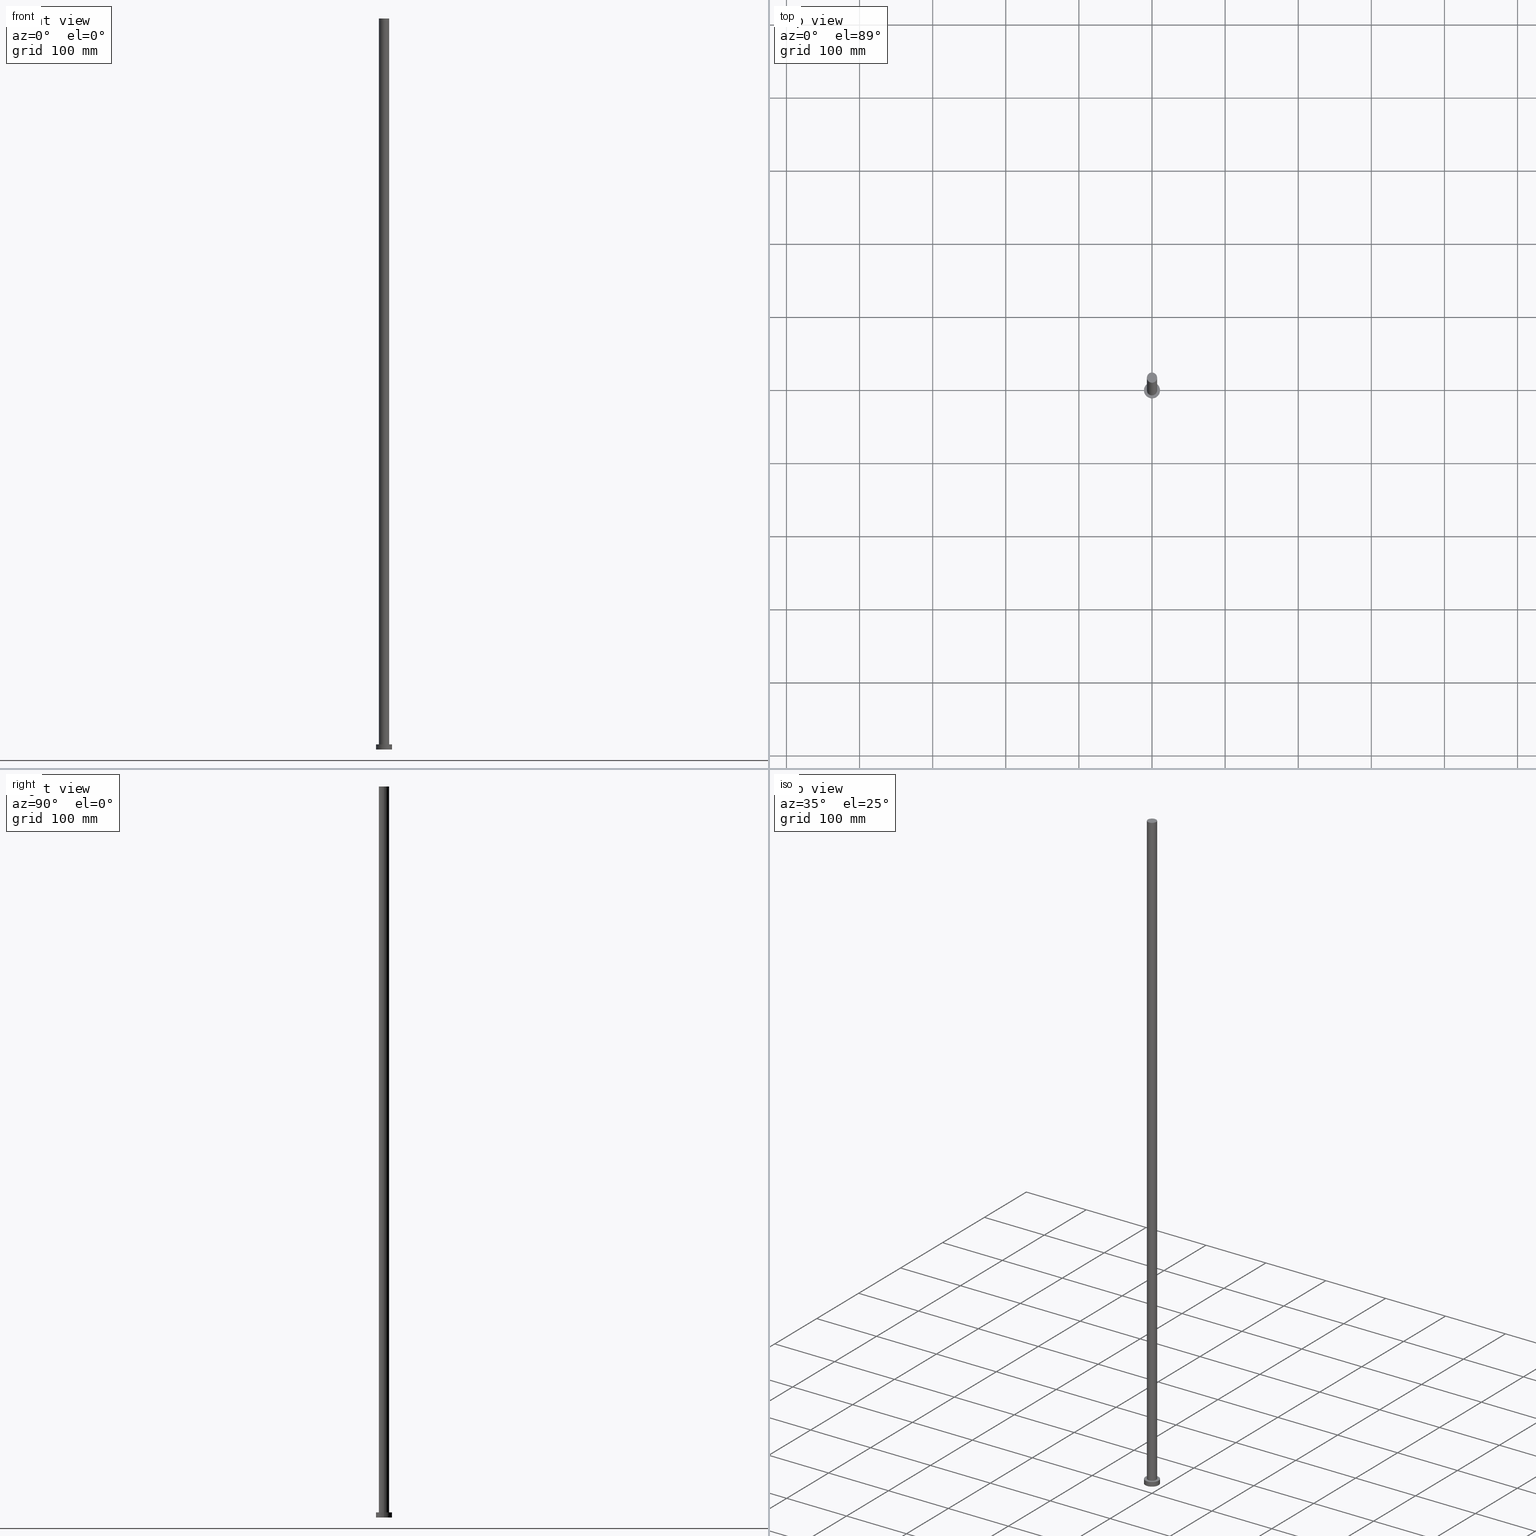
[diagram: canonical four-view strip — front | top / right | iso, engineering-drawing reading convention]
A machine part, canonical four-view strip (front | top / right | iso — engineering-drawing reading convention). The complete STEP part file that produces these views, byte-faithful:
ISO-10303-21;
HEADER;
FILE_DESCRIPTION (( 'STEP AP203' ),
    '1' );
FILE_NAME ('3a1b.STEP',
    '2023-02-13T09:45:21',
    ( '' ),
    ( '' ),
    'SwSTEP 2.0',
    'SolidWorks 2019',
    '' );
FILE_SCHEMA (( 'CONFIG_CONTROL_DESIGN' ));
ENDSEC;

DATA;
#1 = PERSON_AND_ORGANIZATION_ROLE ( 'creator' ) ;
#2 = APPROVAL_PERSON_ORGANIZATION ( #49, #228, #143 ) ;
#3 = ORGANIZATION ( 'NEUR�EN�', 'NEUR�EN�', '' ) ;
#4 = ORIENTED_EDGE ( 'NONE', *, *, #241, .F. ) ;
#5 = APPLICATION_CONTEXT ( 'configuration controlled 3d designs of mechanical parts and assemblies' ) ;
#6 = AXIS2_PLACEMENT_3D ( 'NONE', #63, #104, #48 ) ;
#7 = CIRCLE ( 'NONE', #236, 7.000000000000000888 ) ;
#8 = ORIENTED_EDGE ( 'NONE', *, *, #152, .F. ) ;
#9 = DIRECTION ( 'NONE',  ( -0.000000000000000000, -0.000000000000000000, -1.000000000000000000 ) ) ;
#10 = CC_DESIGN_PERSON_AND_ORGANIZATION_ASSIGNMENT ( #92, #249, ( #41 ) ) ;
#11 = DIRECTION ( 'NONE',  ( 1.000000000000000000, 0.000000000000000000, 0.000000000000000000 ) ) ;
#12 = CARTESIAN_POINT ( 'NONE',  ( -7.000000000000000888, 0.000000000000000000, 1000.000000000000000 ) ) ;
#13 = FACE_OUTER_BOUND ( 'NONE', #22, .T. ) ;
#14 = CARTESIAN_POINT ( 'NONE',  ( 0.000000000000000000, 0.000000000000000000, 0.000000000000000000 ) ) ;
#15 = DIRECTION ( 'NONE',  ( 1.000000000000000000, 0.000000000000000000, 0.000000000000000000 ) ) ;
#16 = APPLICATION_CONTEXT ( 'configuration controlled 3d designs of mechanical parts and assemblies' ) ;
#17 = DIRECTION ( 'NONE',  ( -0.000000000000000000, -0.000000000000000000, -1.000000000000000000 ) ) ;
#18 = CIRCLE ( 'NONE', #140, 7.000000000000000888 ) ;
#19 = DIRECTION ( 'NONE',  ( -0.000000000000000000, -0.000000000000000000, -1.000000000000000000 ) ) ;
#20 = EDGE_CURVE ( 'NONE', #174, #78, #60, .T. ) ;
#21 = ORIENTED_EDGE ( 'NONE', *, *, #55, .T. ) ;
#22 = EDGE_LOOP ( 'NONE', ( #192, #83 ) ) ;
#23 = DATE_TIME_ROLE ( 'creation_date' ) ;
#24 = EDGE_CURVE ( 'NONE', #195, #78, #153, .T. ) ;
#25 = ORIENTED_EDGE ( 'NONE', *, *, #169, .F. ) ;
#26 = ORIENTED_EDGE ( 'NONE', *, *, #20, .T. ) ;
#27 = MANIFOLD_SOLID_BREP ( 'P�idat vysunut�m3', #31 ) ;
#28 = VERTEX_POINT ( 'NONE', #161 ) ;
#29 = CYLINDRICAL_SURFACE ( 'NONE', #108, 11.00000000000000000 ) ;
#30 = DIRECTION ( 'NONE',  ( -0.000000000000000000, -0.000000000000000000, -1.000000000000000000 ) ) ;
#31 = CLOSED_SHELL ( 'NONE', ( #111, #97, #158, #101, #56, #84, #184 ) ) ;
#32 = DIRECTION ( 'NONE',  ( -0.000000000000000000, -0.000000000000000000, -1.000000000000000000 ) ) ;
#33 = CARTESIAN_POINT ( 'NONE',  ( 0.000000000000000000, 0.000000000000000000, 7.000000000000000000 ) ) ;
#34 = DIRECTION ( 'NONE',  ( 0.000000000000000000, 0.000000000000000000, 1.000000000000000000 ) ) ;
#35 = CARTESIAN_POINT ( 'NONE',  ( 0.000000000000000000, 0.000000000000000000, 1000.000000000000000 ) ) ;
#36 = CALENDAR_DATE ( 2023, 13, 2 ) ;
#37 = CALENDAR_DATE ( 2023, 13, 2 ) ;
#38 = EDGE_CURVE ( 'NONE', #86, #28, #147, .T. ) ;
#39 = CARTESIAN_POINT ( 'NONE',  ( 0.000000000000000000, 0.000000000000000000, 7.000000000000000000 ) ) ;
#40 = COORDINATED_UNIVERSAL_TIME_OFFSET ( 1, 0, .AHEAD. ) ;
#41 = PRODUCT ( '3a1b', '3a1b', '', ( #204 ) ) ;
#42 = COORDINATED_UNIVERSAL_TIME_OFFSET ( 1, 0, .AHEAD. ) ;
#43 = ORIENTED_EDGE ( 'NONE', *, *, #94, .F. ) ;
#44 =( GEOMETRIC_REPRESENTATION_CONTEXT ( 3 ) GLOBAL_UNCERTAINTY_ASSIGNED_CONTEXT ( ( #243 ) ) GLOBAL_UNIT_ASSIGNED_CONTEXT ( ( #224, #163, #113 ) ) REPRESENTATION_CONTEXT ( 'NONE', 'WORKASPACE' ) );
#45 = ORIENTED_EDGE ( 'NONE', *, *, #188, .T. ) ;
#46 = AXIS2_PLACEMENT_3D ( 'NONE', #201, #198, #141 ) ;
#47 = CARTESIAN_POINT ( 'NONE',  ( -11.00000000000000000, 0.000000000000000000, 7.000000000000000000 ) ) ;
#48 = DIRECTION ( 'NONE',  ( 1.000000000000000000, 0.000000000000000000, 0.000000000000000000 ) ) ;
#49 = PERSON_AND_ORGANIZATION ( #219, #3 ) ;
#50 = CYLINDRICAL_SURFACE ( 'NONE', #197, 7.000000000000000888 ) ;
#51 = APPLICATION_PROTOCOL_DEFINITION ( 'international standard', 'config_control_design', 1994, #5 ) ;
#52 = PRODUCT_DEFINITION_FORMATION_WITH_SPECIFIED_SOURCE ( 'LIBOVOLN�', '', #41, .NOT_KNOWN. ) ;
#53 = FACE_OUTER_BOUND ( 'NONE', #237, .T. ) ;
#54 = DIRECTION ( 'NONE',  ( 1.000000000000000000, 0.000000000000000000, -0.000000000000000000 ) ) ;
#55 = EDGE_CURVE ( 'NONE', #81, #195, #159, .T. ) ;
#56 = ADVANCED_FACE ( 'NONE', ( #126 ), #226, .F. ) ;
#57 = CALENDAR_DATE ( 2023, 13, 2 ) ;
#58 = AXIS2_PLACEMENT_3D ( 'NONE', #220, #127, #199 ) ;
#59 = EDGE_LOOP ( 'NONE', ( #242, #216, #88, #45 ) ) ;
#60 = LINE ( 'NONE', #218, #68 ) ;
#61 = CC_DESIGN_APPROVAL ( #228, ( #215 ) ) ;
#62 = DIRECTION ( 'NONE',  ( 0.000000000000000000, 0.000000000000000000, 1.000000000000000000 ) ) ;
#63 = CARTESIAN_POINT ( 'NONE',  ( 0.000000000000000000, 0.000000000000000000, 0.000000000000000000 ) ) ;
#64 = AXIS2_PLACEMENT_3D ( 'NONE', #33, #110, #54 ) ;
#65 = DIRECTION ( 'NONE',  ( 0.000000000000000000, 0.000000000000000000, 1.000000000000000000 ) ) ;
#66 = FACE_OUTER_BOUND ( 'NONE', #59, .T. ) ;
#67 = LINE ( 'NONE', #12, #95 ) ;
#68 = VECTOR ( 'NONE', #93, 1000.000000000000000 ) ;
#69 = DIRECTION ( 'NONE',  ( 1.000000000000000000, 0.000000000000000000, 0.000000000000000000 ) ) ;
#70 = LINE ( 'NONE', #129, #168 ) ;
#71 = PRODUCT_RELATED_PRODUCT_CATEGORY ( 'detail', '', ( #41 ) ) ;
#72 = DATE_AND_TIME ( #36, #181 ) ;
#73 = PERSON_AND_ORGANIZATION ( #219, #3 ) ;
#74 = VECTOR ( 'NONE', #9, 1000.000000000000000 ) ;
#75 = DIRECTION ( 'NONE',  ( 0.000000000000000000, 0.000000000000000000, 1.000000000000000000 ) ) ;
#76 = LOCAL_TIME ( 10, 45, 21.00000000000000000, #40 ) ;
#77 = APPROVAL_ROLE ( '' ) ;
#78 = VERTEX_POINT ( 'NONE', #138 ) ;
#79 = PERSON_AND_ORGANIZATION_ROLE ( 'design_supplier' ) ;
#80 = DATE_AND_TIME ( #253, #76 ) ;
#81 = VERTEX_POINT ( 'NONE', #47 ) ;
#82 = SECURITY_CLASSIFICATION_LEVEL ( 'unclassified' ) ;
#83 = ORIENTED_EDGE ( 'NONE', *, *, #94, .T. ) ;
#84 = ADVANCED_FACE ( 'NONE', ( #66 ), #50, .T. ) ;
#85 = CARTESIAN_POINT ( 'NONE',  ( 0.000000000000000000, 0.000000000000000000, 1000.000000000000000 ) ) ;
#86 = VERTEX_POINT ( 'NONE', #128 ) ;
#87 = EDGE_LOOP ( 'NONE', ( #214, #25 ) ) ;
#88 = ORIENTED_EDGE ( 'NONE', *, *, #255, .T. ) ;
#89 = CIRCLE ( 'NONE', #98, 11.00000000000000000 ) ;
#90 = CC_DESIGN_SECURITY_CLASSIFICATION ( #102, ( #52 ) ) ;
#91 = CARTESIAN_POINT ( 'NONE',  ( -11.00000000000000000, 0.000000000000000000, 7.000000000000000000 ) ) ;
#92 = PERSON_AND_ORGANIZATION ( #219, #3 ) ;
#93 = DIRECTION ( 'NONE',  ( -0.000000000000000000, -0.000000000000000000, -1.000000000000000000 ) ) ;
#94 = EDGE_CURVE ( 'NONE', #174, #81, #133, .T. ) ;
#95 = VECTOR ( 'NONE', #231, 1000.000000000000000 ) ;
#96 = CC_DESIGN_DATE_AND_TIME_ASSIGNMENT ( #149, #132, ( #102 ) ) ;
#97 = ADVANCED_FACE ( 'NONE', ( #53 ), #29, .T. ) ;
#98 = AXIS2_PLACEMENT_3D ( 'NONE', #14, #65, #15 ) ;
#99 = ORIENTED_EDGE ( 'NONE', *, *, #175, .F. ) ;
#100 = ORIENTED_EDGE ( 'NONE', *, *, #20, .F. ) ;
#101 = ADVANCED_FACE ( 'NONE', ( #183, #13 ), #203, .T. ) ;
#102 = SECURITY_CLASSIFICATION ( '', '', #82 ) ;
#103 = CC_DESIGN_APPROVAL ( #120, ( #102 ) ) ;
#104 = DIRECTION ( 'NONE',  ( 0.000000000000000000, 0.000000000000000000, 1.000000000000000000 ) ) ;
#105 = CARTESIAN_POINT ( 'NONE',  ( 0.000000000000000000, 0.000000000000000000, 7.000000000000000000 ) ) ;
#106 = DIRECTION ( 'NONE',  ( 0.000000000000000000, 0.000000000000000000, 1.000000000000000000 ) ) ;
#107 = DESIGN_CONTEXT ( 'detailed design', #5, 'design' ) ;
#108 = AXIS2_PLACEMENT_3D ( 'NONE', #105, #32, #186 ) ;
#109 = APPROVAL_STATUS ( 'not_yet_approved' ) ;
#110 = DIRECTION ( 'NONE',  ( 0.000000000000000000, 0.000000000000000000, 1.000000000000000000 ) ) ;
#111 = ADVANCED_FACE ( 'NONE', ( #205 ), #189, .T. ) ;
#112 = AXIS2_PLACEMENT_3D ( 'NONE', #164, #145, #230 ) ;
#113 =( NAMED_UNIT ( * ) SI_UNIT ( $, .STERADIAN. ) SOLID_ANGLE_UNIT ( ) );
#114 = SHAPE_DEFINITION_REPRESENTATION ( #207, #165 ) ;
#115 = DATE_AND_TIME ( #250, #142 ) ;
#116 = CC_DESIGN_PERSON_AND_ORGANIZATION_ASSIGNMENT ( #73, #151, ( #102 ) ) ;
#117 = APPROVAL_ROLE ( '' ) ;
#118 = CIRCLE ( 'NONE', #177, 7.000000000000000888 ) ;
#119 = APPROVAL_DATE_TIME ( #190, #120 ) ;
#120 = APPROVAL ( #254, 'NEUR�EN�' ) ;
#121 = AXIS2_PLACEMENT_3D ( 'NONE', #137, #62, #179 ) ;
#122 = ORIENTED_EDGE ( 'NONE', *, *, #241, .T. ) ;
#123 = EDGE_LOOP ( 'NONE', ( #173, #4 ) ) ;
#124 = AXIS2_PLACEMENT_3D ( 'NONE', #248, #106, #200 ) ;
#125 = DIRECTION ( 'NONE',  ( 0.000000000000000000, 0.000000000000000000, 1.000000000000000000 ) ) ;
#126 = FACE_OUTER_BOUND ( 'NONE', #123, .T. ) ;
#127 = DIRECTION ( 'NONE',  ( 0.000000000000000000, 0.000000000000000000, 1.000000000000000000 ) ) ;
#128 = CARTESIAN_POINT ( 'NONE',  ( -7.000000000000000888, 0.000000000000000000, 1000.000000000000000 ) ) ;
#129 = CARTESIAN_POINT ( 'NONE',  ( 7.000000000000000888, 8.572527594031474176E-16, 1000.000000000000000 ) ) ;
#130 = FACE_OUTER_BOUND ( 'NONE', #136, .T. ) ;
#131 = PERSON_AND_ORGANIZATION ( #219, #3 ) ;
#132 = DATE_TIME_ROLE ( 'classification_date' ) ;
#133 = CIRCLE ( 'NONE', #46, 11.00000000000000000 ) ;
#134 = APPROVAL_PERSON_ORGANIZATION ( #210, #120, #77 ) ;
#135 = ORIENTED_EDGE ( 'NONE', *, *, #255, .F. ) ;
#136 = EDGE_LOOP ( 'NONE', ( #100, #8, #21, #156 ) ) ;
#137 = CARTESIAN_POINT ( 'NONE',  ( 0.000000000000000000, 0.000000000000000000, 1000.000000000000000 ) ) ;
#138 = CARTESIAN_POINT ( 'NONE',  ( 11.00000000000000000, 1.347111479062088405E-15, 0.000000000000000000 ) ) ;
#139 = LOCAL_TIME ( 10, 45, 21.00000000000000000, #42 ) ;
#140 = AXIS2_PLACEMENT_3D ( 'NONE', #245, #34, #11 ) ;
#141 = DIRECTION ( 'NONE',  ( 1.000000000000000000, 0.000000000000000000, 0.000000000000000000 ) ) ;
#142 = LOCAL_TIME ( 10, 45, 21.00000000000000000, #209 ) ;
#143 = APPROVAL_ROLE ( '' ) ;
#144 = DIRECTION ( 'NONE',  ( -0.000000000000000000, -0.000000000000000000, -1.000000000000000000 ) ) ;
#145 = DIRECTION ( 'NONE',  ( 0.000000000000000000, 0.000000000000000000, 1.000000000000000000 ) ) ;
#146 = PERSON_AND_ORGANIZATION ( #219, #3 ) ;
#147 = CIRCLE ( 'NONE', #121, 7.000000000000000888 ) ;
#148 = APPROVAL ( #234, 'NEUR�EN�' ) ;
#149 = DATE_AND_TIME ( #57, #247 ) ;
#150 = ORIENTED_EDGE ( 'NONE', *, *, #55, .F. ) ;
#151 = PERSON_AND_ORGANIZATION_ROLE ( 'classification_officer' ) ;
#152 = EDGE_CURVE ( 'NONE', #81, #174, #221, .T. ) ;
#153 = CIRCLE ( 'NONE', #6, 11.00000000000000000 ) ;
#154 = ORIENTED_EDGE ( 'NONE', *, *, #225, .T. ) ;
#155 = DIRECTION ( 'NONE',  ( -1.000000000000000000, 0.000000000000000000, 0.000000000000000000 ) ) ;
#156 = ORIENTED_EDGE ( 'NONE', *, *, #24, .T. ) ;
#157 = DIRECTION ( 'NONE',  ( 1.000000000000000000, 0.000000000000000000, 0.000000000000000000 ) ) ;
#158 = ADVANCED_FACE ( 'NONE', ( #130 ), #208, .T. ) ;
#159 = LINE ( 'NONE', #91, #74 ) ;
#160 = APPLICATION_PROTOCOL_DEFINITION ( 'international standard', 'config_control_design', 1994, #16 ) ;
#161 = CARTESIAN_POINT ( 'NONE',  ( 7.000000000000000888, 8.572527594031474176E-16, 1000.000000000000000 ) ) ;
#162 = APPROVAL_DATE_TIME ( #72, #228 ) ;
#163 =( NAMED_UNIT ( * ) PLANE_ANGLE_UNIT ( ) SI_UNIT ( $, .RADIAN. ) );
#164 = CARTESIAN_POINT ( 'NONE',  ( 0.000000000000000000, 0.000000000000000000, 7.000000000000000000 ) ) ;
#165 = ADVANCED_BREP_SHAPE_REPRESENTATION ( '3a1b', ( #27, #222 ), #44 ) ;
#166 = PERSON_AND_ORGANIZATION ( #219, #3 ) ;
#167 = DIRECTION ( 'NONE',  ( -1.000000000000000000, 0.000000000000000000, 0.000000000000000000 ) ) ;
#168 = VECTOR ( 'NONE', #144, 1000.000000000000000 ) ;
#169 = EDGE_CURVE ( 'NONE', #235, #194, #118, .T. ) ;
#170 = APPROVAL_DATE_TIME ( #115, #148 ) ;
#171 = EDGE_LOOP ( 'NONE', ( #191, #176 ) ) ;
#172 = AXIS2_PLACEMENT_3D ( 'NONE', #39, #19, #167 ) ;
#173 = ORIENTED_EDGE ( 'NONE', *, *, #24, .F. ) ;
#174 = VERTEX_POINT ( 'NONE', #213 ) ;
#175 = EDGE_CURVE ( 'NONE', #28, #86, #7, .T. ) ;
#176 = ORIENTED_EDGE ( 'NONE', *, *, #175, .T. ) ;
#177 = AXIS2_PLACEMENT_3D ( 'NONE', #252, #75, #232 ) ;
#178 = CC_DESIGN_PERSON_AND_ORGANIZATION_ASSIGNMENT ( #146, #193, ( #215 ) ) ;
#179 = DIRECTION ( 'NONE',  ( 1.000000000000000000, 0.000000000000000000, 0.000000000000000000 ) ) ;
#180 = DIRECTION ( 'NONE',  ( -1.000000000000000000, 0.000000000000000000, 0.000000000000000000 ) ) ;
#181 = LOCAL_TIME ( 10, 45, 21.00000000000000000, #185 ) ;
#182 = DIRECTION ( 'NONE',  ( 0.000000000000000000, 0.000000000000000000, 1.000000000000000000 ) ) ;
#183 = FACE_BOUND ( 'NONE', #87, .T. ) ;
#184 = ADVANCED_FACE ( 'NONE', ( #239 ), #217, .T. ) ;
#185 = COORDINATED_UNIVERSAL_TIME_OFFSET ( 1, 0, .AHEAD. ) ;
#186 = DIRECTION ( 'NONE',  ( -1.000000000000000000, 0.000000000000000000, 0.000000000000000000 ) ) ;
#187 = CARTESIAN_POINT ( 'NONE',  ( -7.000000000000000888, 0.000000000000000000, 7.000000000000000000 ) ) ;
#188 = EDGE_CURVE ( 'NONE', #194, #235, #18, .T. ) ;
#189 = CYLINDRICAL_SURFACE ( 'NONE', #251, 7.000000000000000888 ) ;
#190 = DATE_AND_TIME ( #37, #139 ) ;
#191 = ORIENTED_EDGE ( 'NONE', *, *, #38, .T. ) ;
#192 = ORIENTED_EDGE ( 'NONE', *, *, #152, .T. ) ;
#193 = PERSON_AND_ORGANIZATION_ROLE ( 'creator' ) ;
#194 = VERTEX_POINT ( 'NONE', #187 ) ;
#195 = VERTEX_POINT ( 'NONE', #227 ) ;
#196 = EDGE_LOOP ( 'NONE', ( #99, #154, #240, #135 ) ) ;
#197 = AXIS2_PLACEMENT_3D ( 'NONE', #223, #30, #180 ) ;
#198 = DIRECTION ( 'NONE',  ( 0.000000000000000000, 0.000000000000000000, 1.000000000000000000 ) ) ;
#199 = DIRECTION ( 'NONE',  ( 1.000000000000000000, 0.000000000000000000, -0.000000000000000000 ) ) ;
#200 = DIRECTION ( 'NONE',  ( 1.000000000000000000, 0.000000000000000000, -0.000000000000000000 ) ) ;
#201 = CARTESIAN_POINT ( 'NONE',  ( 0.000000000000000000, 0.000000000000000000, 7.000000000000000000 ) ) ;
#202 = APPROVAL_PERSON_ORGANIZATION ( #166, #148, #117 ) ;
#203 = PLANE ( 'NONE',  #64 ) ;
#204 = MECHANICAL_CONTEXT ( 'NONE', #16, 'mechanical' ) ;
#205 = FACE_OUTER_BOUND ( 'NONE', #196, .T. ) ;
#206 = CC_DESIGN_PERSON_AND_ORGANIZATION_ASSIGNMENT ( #131, #1, ( #52 ) ) ;
#207 = PRODUCT_DEFINITION_SHAPE ( 'NONE', 'NONE',  #215 ) ;
#208 = CYLINDRICAL_SURFACE ( 'NONE', #172, 11.00000000000000000 ) ;
#209 = COORDINATED_UNIVERSAL_TIME_OFFSET ( 1, 0, .AHEAD. ) ;
#210 = PERSON_AND_ORGANIZATION ( #219, #3 ) ;
#211 = CC_DESIGN_APPROVAL ( #148, ( #52 ) ) ;
#212 = PERSON_AND_ORGANIZATION ( #219, #3 ) ;
#213 = CARTESIAN_POINT ( 'NONE',  ( 11.00000000000000000, 1.347111479062088405E-15, 7.000000000000000000 ) ) ;
#214 = ORIENTED_EDGE ( 'NONE', *, *, #188, .F. ) ;
#215 = PRODUCT_DEFINITION ( 'NEZN�M�', '', #52, #107 ) ;
#216 = ORIENTED_EDGE ( 'NONE', *, *, #38, .F. ) ;
#217 = PLANE ( 'NONE',  #124 ) ;
#218 = CARTESIAN_POINT ( 'NONE',  ( 11.00000000000000000, 1.347111479062088405E-15, 7.000000000000000000 ) ) ;
#219 = PERSON ( 'NEUR�EN�', 'NEUR�EN�', 'NEUR�EN�', ('NEUR�EN�'), ('NEUR�EN�'), ('NEUR�EN�') ) ;
#220 = CARTESIAN_POINT ( 'NONE',  ( 0.000000000000000000, 0.000000000000000000, 0.000000000000000000 ) ) ;
#221 = CIRCLE ( 'NONE', #112, 11.00000000000000000 ) ;
#222 = AXIS2_PLACEMENT_3D ( 'NONE', #246, #182, #69 ) ;
#223 = CARTESIAN_POINT ( 'NONE',  ( 0.000000000000000000, 0.000000000000000000, 1000.000000000000000 ) ) ;
#224 =( LENGTH_UNIT ( ) NAMED_UNIT ( * ) SI_UNIT ( .MILLI., .METRE. ) );
#225 = EDGE_CURVE ( 'NONE', #28, #235, #70, .T. ) ;
#226 = PLANE ( 'NONE',  #58 ) ;
#227 = CARTESIAN_POINT ( 'NONE',  ( -11.00000000000000000, 0.000000000000000000, 0.000000000000000000 ) ) ;
#228 = APPROVAL ( #109, 'NEUR�EN�' ) ;
#229 = CARTESIAN_POINT ( 'NONE',  ( 7.000000000000000888, 8.572527594031474176E-16, 7.000000000000000000 ) ) ;
#230 = DIRECTION ( 'NONE',  ( 1.000000000000000000, 0.000000000000000000, 0.000000000000000000 ) ) ;
#231 = DIRECTION ( 'NONE',  ( -0.000000000000000000, -0.000000000000000000, -1.000000000000000000 ) ) ;
#232 = DIRECTION ( 'NONE',  ( 1.000000000000000000, 0.000000000000000000, 0.000000000000000000 ) ) ;
#233 = COORDINATED_UNIVERSAL_TIME_OFFSET ( 1, 0, .AHEAD. ) ;
#234 = APPROVAL_STATUS ( 'not_yet_approved' ) ;
#235 = VERTEX_POINT ( 'NONE', #229 ) ;
#236 = AXIS2_PLACEMENT_3D ( 'NONE', #85, #125, #157 ) ;
#237 = EDGE_LOOP ( 'NONE', ( #43, #26, #122, #150 ) ) ;
#238 = CC_DESIGN_PERSON_AND_ORGANIZATION_ASSIGNMENT ( #212, #79, ( #52 ) ) ;
#239 = FACE_OUTER_BOUND ( 'NONE', #171, .T. ) ;
#240 = ORIENTED_EDGE ( 'NONE', *, *, #169, .T. ) ;
#241 = EDGE_CURVE ( 'NONE', #78, #195, #89, .T. ) ;
#242 = ORIENTED_EDGE ( 'NONE', *, *, #225, .F. ) ;
#243 = UNCERTAINTY_MEASURE_WITH_UNIT (LENGTH_MEASURE( 1.000000000000000082E-05 ), #224, 'distance_accuracy_value', 'NONE');
#244 = CC_DESIGN_DATE_AND_TIME_ASSIGNMENT ( #80, #23, ( #215 ) ) ;
#245 = CARTESIAN_POINT ( 'NONE',  ( 0.000000000000000000, 0.000000000000000000, 7.000000000000000000 ) ) ;
#246 = CARTESIAN_POINT ( 'NONE',  ( 0.000000000000000000, 0.000000000000000000, 0.000000000000000000 ) ) ;
#247 = LOCAL_TIME ( 10, 45, 21.00000000000000000, #233 ) ;
#248 = CARTESIAN_POINT ( 'NONE',  ( 0.000000000000000000, 0.000000000000000000, 1000.000000000000000 ) ) ;
#249 = PERSON_AND_ORGANIZATION_ROLE ( 'design_owner' ) ;
#250 = CALENDAR_DATE ( 2023, 13, 2 ) ;
#251 = AXIS2_PLACEMENT_3D ( 'NONE', #35, #17, #155 ) ;
#252 = CARTESIAN_POINT ( 'NONE',  ( 0.000000000000000000, 0.000000000000000000, 7.000000000000000000 ) ) ;
#253 = CALENDAR_DATE ( 2023, 13, 2 ) ;
#254 = APPROVAL_STATUS ( 'not_yet_approved' ) ;
#255 = EDGE_CURVE ( 'NONE', #86, #194, #67, .T. ) ;
ENDSEC;
END-ISO-10303-21;
